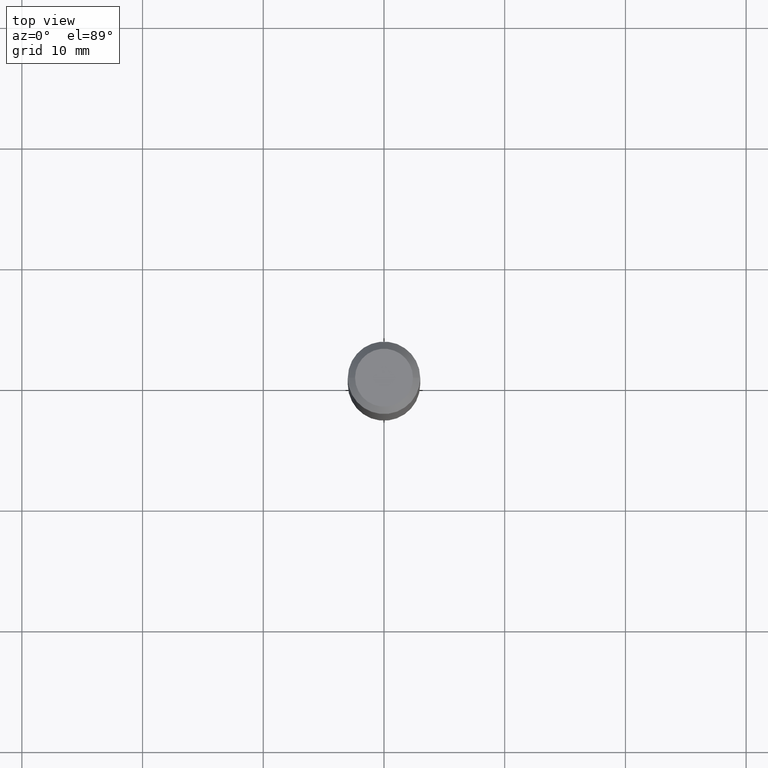
[diagram: clean part render]
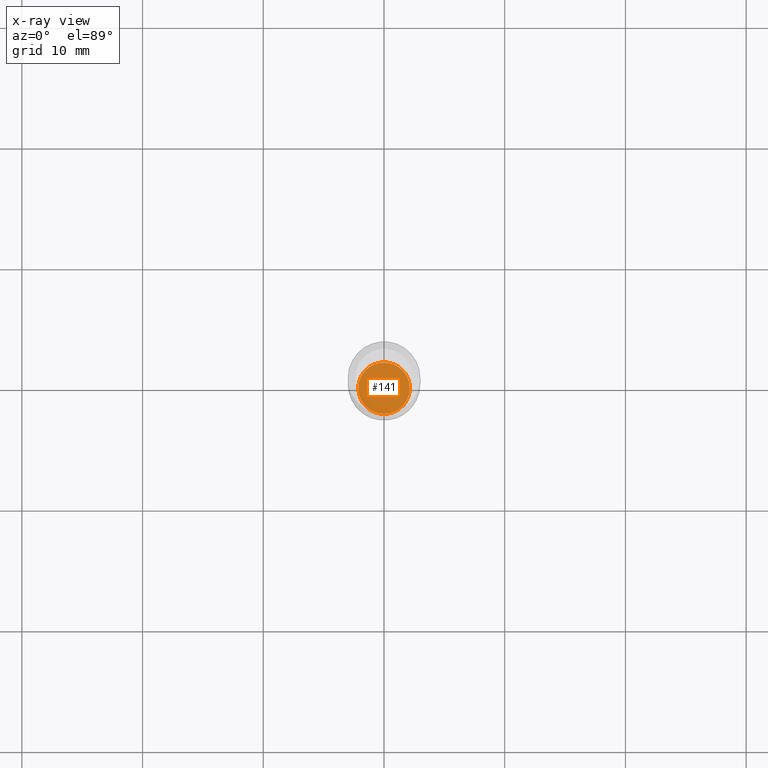
[diagram: x-ray — body ghosted, one internal face saturated and labeled with its STEP entity id]
A machine part, top view, then the same camera in x-ray: the body is ghosted and one INTERNAL B-rep face — a face not visible from any outside direction — is saturated and labeled: STEP entity #141.
In plain terms, the highlighted planar face has unit normal (-0, 0, 1).
Its self-contained STEP definition (entity closure, byte-faithful):
#1 = DIRECTION ( 'NONE',  ( -2.445468806185136597E-29, 3.491481338843145583E-15, 1.000000000000000000 ) ) ;
#33 = DIRECTION ( 'NONE',  ( -2.438088387897960049E-29, 3.491481338843145188E-15, 1.000000000000000000 ) ) ;
#122 = ORIENTED_EDGE ( 'NONE', *, *, #131, .F. ) ;
#131 = EDGE_CURVE ( 'NONE', #402, #298, #359, .T. ) ;
#141 = ADVANCED_FACE ( 'NONE', ( #258 ), #385, .F. ) ;
#186 = DIRECTION ( 'NONE',  ( 1.000000000000000000, -6.982962677686263555E-15, 0.000000000000000000 ) ) ;
#238 = CARTESIAN_POINT ( 'NONE',  ( 3.542150508699133947E-30, -1.336930979663076594E-14, -1.984200000000000186 ) ) ;
#250 = EDGE_LOOP ( 'NONE', ( #440, #122 ) ) ;
#258 = FACE_OUTER_BOUND ( 'NONE', #250, .T. ) ;
#262 = CARTESIAN_POINT ( 'NONE',  ( -0.08415000000000000258, -6.327226333216334943E-15, -1.984200000000000408 ) ) ;
#273 = CARTESIAN_POINT ( 'NONE',  ( 4.852299205232548963E-29, -6.927797272532570864E-15, -1.984200000000000408 ) ) ;
#283 = CIRCLE ( 'NONE', #337, 0.08415000000000000258 ) ;
#295 = EDGE_CURVE ( 'NONE', #298, #402, #283, .T. ) ;
#298 = VERTEX_POINT ( 'NONE', #349 ) ;
#337 = AXIS2_PLACEMENT_3D ( 'NONE', #273, #394, #186 ) ;
#349 = CARTESIAN_POINT ( 'NONE',  ( 0.08415000000000000258, -7.515413581859870264E-15, -1.984200000000000408 ) ) ;
#359 = CIRCLE ( 'NONE', #458, 0.08415000000000000258 ) ;
#360 = CARTESIAN_POINT ( 'NONE',  ( 4.852299205232548963E-29, -6.927797272532570864E-15, -1.984200000000000408 ) ) ;
#385 = PLANE ( 'NONE',  #499 ) ;
#394 = DIRECTION ( 'NONE',  ( -2.445468806185136597E-29, 3.491481338843145583E-15, 1.000000000000000000 ) ) ;
#402 = VERTEX_POINT ( 'NONE', #262 ) ;
#423 = DIRECTION ( 'NONE',  ( 1.000000000000000000, -6.982962677686263555E-15, 0.000000000000000000 ) ) ;
#440 = ORIENTED_EDGE ( 'NONE', *, *, #295, .F. ) ;
#458 = AXIS2_PLACEMENT_3D ( 'NONE', #360, #1, #423 ) ;
#499 = AXIS2_PLACEMENT_3D ( 'NONE', #238, #33, #515 ) ;
#515 = DIRECTION ( 'NONE',  ( 1.000000000000000000, -6.982962677686265922E-15, 4.876176775795935793E-29 ) ) ;